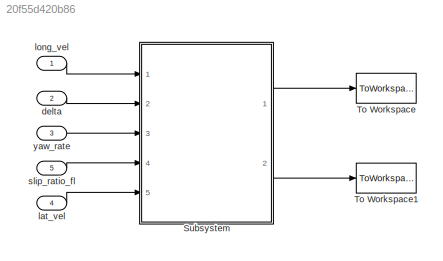
MODEL slx_20f55d420b86
KIND model
CONFIG AbsTol = auto
CONFIG FixedStep = auto
CONFIG MaxStep = auto
CONFIG MinStep = auto
CONFIG RelTol = 1e-3
CONFIG SampleTimeConstraint = Unconstrained
CONFIG Solver = ode45
CONFIG SolverMode = Auto
CONFIG SolverName = ode45
CONFIG StartTime = 0.0
CONFIG StopTime = 10.0
BLOCK [Inport]   delta 
  IconDisplay = Port number
  Port = 2
BLOCK [Inport]   lat_vel
  IconDisplay = Port number
  Port = 4
BLOCK [Inport]   long_vel  
  IconDisplay = Port number
BLOCK [Inport]   yaw_rate 
  IconDisplay = Port number
  Port = 3
BLOCK [Inport]  slip_ratio_fl  
  IconDisplay = Port number
  Port = 5
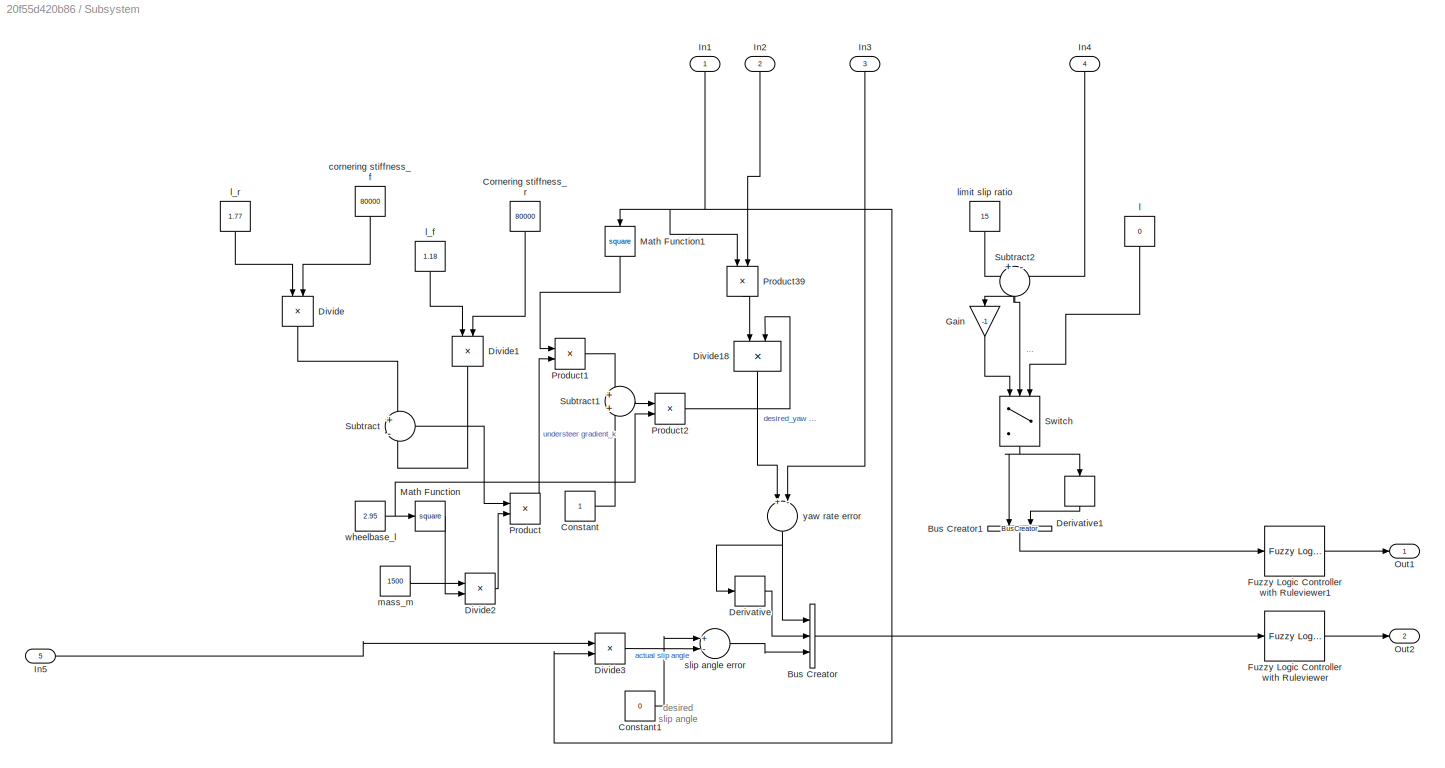
BLOCK [SubSystem] Subsystem
  Ports = [5, 2]
  RequestExecContextInheritance = off
BLOCK [BusCreator] Subsystem/Bus Creator
  DisplayOption = bar
  Inputs = 3
  Ports = [3, 1]
BLOCK [BusCreator] Subsystem/Bus Creator1
  DisplayOption = bar
  Inputs = 2
  Ports = [2, 1]
BLOCK [Constant] Subsystem/Constant
BLOCK [Constant] Subsystem/Constant1
  Value = 0
BLOCK [Constant] Subsystem/Cornering stiffness_r 
  Value = 80000
BLOCK [Derivative] Subsystem/Derivative
BLOCK [Derivative] Subsystem/Derivative1
BLOCK [Product] Subsystem/Divide
  InputSameDT = off
  Inputs = */
  OutDataTypeStr = Inherit: Inherit via internal rule
  Ports = [2, 1]
  RndMeth = Floor
  SaturateOnIntegerOverflow = off
BLOCK [Product] Subsystem/Divide1
  InputSameDT = off
  Inputs = */
  OutDataTypeStr = Inherit: Inherit via internal rule
  Ports = [2, 1]
  RndMeth = Floor
  SaturateOnIntegerOverflow = off
BLOCK [Product] Subsystem/Divide18
  InputSameDT = off
  Inputs = */
  OutDataTypeStr = Inherit: Inherit via internal rule
  Ports = [2, 1]
  RndMeth = Floor
  SaturateOnIntegerOverflow = off
BLOCK [Product] Subsystem/Divide2
  InputSameDT = off
  Inputs = */
  OutDataTypeStr = Inherit: Inherit via internal rule
  Ports = [2, 1]
  RndMeth = Floor
  SaturateOnIntegerOverflow = off
BLOCK [Product] Subsystem/Divide3
  InputSameDT = off
  Inputs = */
  OutDataTypeStr = Inherit: Inherit via internal rule
  Ports = [2, 1]
  RndMeth = Floor
  SaturateOnIntegerOverflow = off
BLOCK [Reference] Subsystem/Fuzzy Logic Controller with Ruleviewer  REF=fuzblock/Fuzzy Logic   (lib defined in mdl_858b3b3e7478)
Controller 
with Ruleviewer
  Ports = [1, 1]
  SourceBlock = fuzblock/Fuzzy Logic \nController \nwith Ruleviewer
  SourceType = FIS
  Ts = 2
  fismatrix = yaw_rate
BLOCK [Reference] Subsystem/Fuzzy Logic Controller with Ruleviewer1  REF=fuzblock/Fuzzy Logic   (lib defined in mdl_858b3b3e7478)
Controller 
with Ruleviewer
  Ports = [1, 1]
  SourceBlock = fuzblock/Fuzzy Logic \nController \nwith Ruleviewer
  SourceType = FIS
  Ts = 2
  fismatrix = slip_ratio
BLOCK [Gain] Subsystem/Gain
  Gain = -1
  OutDataTypeStr = Inherit: Inherit via internal rule
  ParamDataTypeStr = Inherit: Inherit via internal rule
  SaturateOnIntegerOverflow = off
BLOCK [Inport] Subsystem/In1
  IconDisplay = Port number
BLOCK [Inport] Subsystem/In2
  IconDisplay = Port number
  Port = 2
BLOCK [Inport] Subsystem/In3
  IconDisplay = Port number
  Port = 3
BLOCK [Inport] Subsystem/In4
  IconDisplay = Port number
  Port = 4
BLOCK [Inport] Subsystem/In5
  IconDisplay = Port number
  Port = 5
BLOCK [Math] Subsystem/Math Function
  Operator = square
  Ports = [1, 1]
BLOCK [Math] Subsystem/Math Function1
  Operator = square
  Ports = [1, 1]
BLOCK [Outport] Subsystem/Out1
  IconDisplay = Port number
BLOCK [Outport] Subsystem/Out2
  IconDisplay = Port number
  Port = 2
BLOCK [Product] Subsystem/Product
  InputSameDT = off
  OutDataTypeStr = Inherit: Inherit via internal rule
  Ports = [2, 1]
  RndMeth = Floor
  SaturateOnIntegerOverflow = off
BLOCK [Product] Subsystem/Product1
  InputSameDT = off
  OutDataTypeStr = Inherit: Inherit via internal rule
  Ports = [2, 1]
  RndMeth = Floor
  SaturateOnIntegerOverflow = off
BLOCK [Product] Subsystem/Product2
  InputSameDT = off
  OutDataTypeStr = Inherit: Inherit via internal rule
  Ports = [2, 1]
  RndMeth = Floor
  SaturateOnIntegerOverflow = off
BLOCK [Product] Subsystem/Product39
  InputSameDT = off
  OutDataTypeStr = Inherit: Inherit via internal rule
  Ports = [2, 1]
  RndMeth = Floor
  SaturateOnIntegerOverflow = off
BLOCK [Sum] Subsystem/Subtract
  IconShape = round
  InputSameDT = off
  Inputs = +-
  OutDataTypeStr = Inherit: Inherit via internal rule
  Ports = [2, 1]
  SaturateOnIntegerOverflow = off
BLOCK [Sum] Subsystem/Subtract1
  IconShape = round
  InputSameDT = off
  OutDataTypeStr = Inherit: Inherit via internal rule
  Ports = [2, 1]
  SaturateOnIntegerOverflow = off
BLOCK [Sum] Subsystem/Subtract2
  IconShape = round
  InputSameDT = off
  Inputs = +-
  OutDataTypeStr = Inherit: Inherit via internal rule
  Ports = [2, 1]
  SaturateOnIntegerOverflow = off
BLOCK [Switch] Subsystem/Switch
  Criteria = u2 > Threshold
  InputSameDT = off
  SaturateOnIntegerOverflow = off
  Threshold = 15
BLOCK [Constant] Subsystem/cornering stiffness_f 
  Value = 80000
BLOCK [Constant] Subsystem/l
  Value = 0
BLOCK [Constant] Subsystem/l_f 
  Value = 1.18
BLOCK [Constant] Subsystem/l_r 
  Value = 1.77
BLOCK [Constant] Subsystem/limit slip ratio
  Value = 15
BLOCK [Constant] Subsystem/mass_m
  Value = 1500
BLOCK [Sum] Subsystem/slip angle error  
  InputSameDT = off
  Inputs = +-
  OutDataTypeStr = Inherit: Inherit via internal rule
  Ports = [2, 1]
  SaturateOnIntegerOverflow = off
BLOCK [Constant] Subsystem/wheelbase_l
  Value = 2.95
BLOCK [Sum] Subsystem/yaw rate error   
  InputSameDT = off
  Inputs = +-
  OutDataTypeStr = Inherit: Inherit via internal rule
  Ports = [2, 1]
  SaturateOnIntegerOverflow = off
BLOCK [ToWorkspace] To Workspace
  FixptAsFi = on
  MaxDataPoints = inf
  Ports = [1]
  SampleTime = -1
  Save2DSignal = 3-D array (concatenate along third dimension)
  SaveFormat = Timeseries
  VariableName = Tc_fr
BLOCK [ToWorkspace] To Workspace1
  FixptAsFi = on
  MaxDataPoints = inf
  Ports = [1]
  SampleTime = -1
  Save2DSignal = 3-D array (concatenate along third dimension)
  SaveFormat = Timeseries
  VariableName = Tc_lr
ANNOTATION Subsystem: desired slip angle
LINE   delta :1 -> Subsystem:2
LINE   lat_vel:1 -> Subsystem:5
LINE   long_vel  :1 -> Subsystem:1
LINE   yaw_rate :1 -> Subsystem:3
LINE  slip_ratio_fl  :1 -> Subsystem:4
LINE Subsystem/Bus Creator1:1 -> Subsystem/Fuzzy Logic Controller with Ruleviewer1:1
LINE Subsystem/Bus Creator:1 -> Subsystem/Fuzzy Logic Controller with Ruleviewer:1
LINE Subsystem/Constant1:1 -> Subsystem/slip angle error  :1
LINE Subsystem/Constant:1 -> Subsystem/Subtract1:2
LINE Subsystem/Cornering stiffness_r :1 -> Subsystem/Divide1:2
LINE Subsystem/Derivative1:1 -> Subsystem/Bus Creator1:2
LINE Subsystem/Derivative:1 -> Subsystem/Bus Creator:2
LINE Subsystem/Divide18:1 -> Subsystem/yaw rate error   :1
LINE Subsystem/Divide1:1 -> Subsystem/Subtract:2
LINE Subsystem/Divide2:1 -> Subsystem/Product:2
LINE Subsystem/Divide3:1 -> Subsystem/slip angle error  :2
LINE Subsystem/Divide:1 -> Subsystem/Subtract:1
LINE Subsystem/Fuzzy Logic Controller with Ruleviewer1:1 -> Subsystem/Out1:1
LINE Subsystem/Fuzzy Logic Controller with Ruleviewer:1 -> Subsystem/Out2:1
LINE Subsystem/Gain:1 -> Subsystem/Switch:1
NET Subsystem/In1:1 -> Subsystem/Divide3:2, Subsystem/Math Function1:1, Subsystem/Product39:1
LINE Subsystem/In2:1 -> Subsystem/Product39:2
LINE Subsystem/In3:1 -> Subsystem/yaw rate error   :2
LINE Subsystem/In4:1 -> Subsystem/Subtract2:2
LINE Subsystem/In5:1 -> Subsystem/Divide3:1
LINE Subsystem/Math Function1:1 -> Subsystem/Product1:1
LINE Subsystem/Math Function:1 -> Subsystem/Divide2:2
LINE Subsystem/Product1:1 -> Subsystem/Subtract1:1
LINE Subsystem/Product2:1 -> Subsystem/Divide18:2
LINE Subsystem/Product39:1 -> Subsystem/Divide18:1
LINE Subsystem/Product:1 -> Subsystem/Product1:2
LINE Subsystem/Subtract1:1 -> Subsystem/Product2:1
NET Subsystem/Subtract2:1 -> Subsystem/Gain:1, Subsystem/Switch:2
LINE Subsystem/Subtract:1 -> Subsystem/Product:1
NET Subsystem/Switch:1 -> Subsystem/Bus Creator1:1, Subsystem/Derivative1:1
LINE Subsystem/cornering stiffness_f :1 -> Subsystem/Divide:2
LINE Subsystem/l:1 -> Subsystem/Switch:3
LINE Subsystem/l_f :1 -> Subsystem/Divide1:1
LINE Subsystem/l_r :1 -> Subsystem/Divide:1
LINE Subsystem/limit slip ratio:1 -> Subsystem/Subtract2:1
LINE Subsystem/mass_m:1 -> Subsystem/Divide2:1
LINE Subsystem/slip angle error  :1 -> Subsystem/Bus Creator:3
NET Subsystem/wheelbase_l:1 -> Subsystem/Math Function:1, Subsystem/Product2:2
NET Subsystem/yaw rate error   :1 -> Subsystem/Bus Creator:1, Subsystem/Derivative:1
LINE Subsystem:1 -> To Workspace:1
LINE Subsystem:2 -> To Workspace1:1
note: NET lines group one-source signal fan-out (src -> all destinations, sorted); 1:1 wires keep LINE
